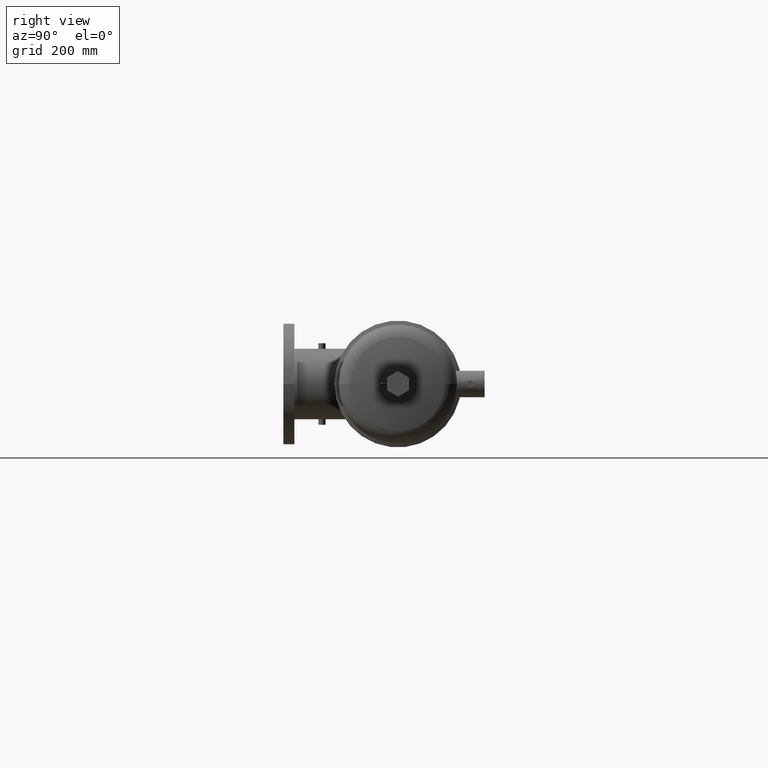
[diagram: clean part render]
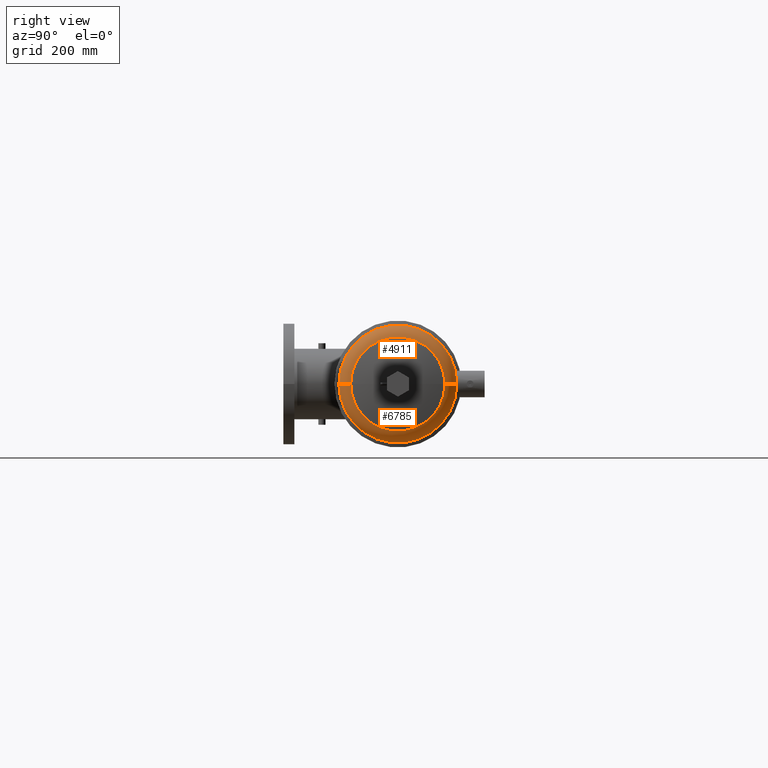
[diagram: same view with one multi-face feature highlighted, each face labeled with its STEP entity id]
A machine part, right view. The highlighted faces form ONE feature: a constant-radius fillet chain: 2 tangent blend faces with common blend radius 36.1885 mm. The faces share edges in the B-rep.
Their STEP definitions:
[1] entity #6785 (Torus):
#74 = EDGE_CURVE ( 'NONE', #2898, #160, #1484, .T. ) ;
#105 = AXIS2_PLACEMENT_3D ( 'NONE', #3814, #4412, #2226 ) ;
#132 = CARTESIAN_POINT ( 'NONE',  ( 46.73602763652997500, 3.146306107555197100E-007, 0.0000000000000000000 ) ) ;
#160 = VERTEX_POINT ( 'NONE', #5049 ) ;
#787 = DIRECTION ( 'NONE',  ( 1.000000000000000000, -8.273921759108280900E-016, 0.0000000000000000000 ) ) ;
#834 = EDGE_CURVE ( 'NONE', #2558, #7233, #5569, .T. ) ;
#877 = ORIENTED_EDGE ( 'NONE', *, *, #834, .F. ) ;
#962 = AXIS2_PLACEMENT_3D ( 'NONE', #2124, #5149, #1601 ) ;
#1484 = CIRCLE ( 'NONE', #962, 1.424746040561559700 ) ;
#1573 = AXIS2_PLACEMENT_3D ( 'NONE', #5962, #5881, #3640 ) ;
#1601 = DIRECTION ( 'NONE',  ( -1.000000000000000000, 0.0000000000000000000, 0.0000000000000000000 ) ) ;
#1927 = EDGE_CURVE ( 'NONE', #160, #7233, #5999, .T. ) ;
#2124 = CARTESIAN_POINT ( 'NONE',  ( 46.38726615220621600, -3.970789924957152600, 0.0000000000000000000 ) ) ;
#2226 = DIRECTION ( 'NONE',  ( 0.0000000000000000000, -1.000000000000000000, 0.0000000000000000000 ) ) ;
#2371 = DIRECTION ( 'NONE',  ( -8.273921759108279900E-016, -1.000000000000000000, 0.0000000000000000000 ) ) ;
#2379 = ORIENTED_EDGE ( 'NONE', *, *, #1927, .T. ) ;
#2558 = VERTEX_POINT ( 'NONE', #5139 ) ;
#2822 = ORIENTED_EDGE ( 'NONE', *, *, #3596, .T. ) ;
#2898 = VERTEX_POINT ( 'NONE', #6905 ) ;
#3377 = EDGE_LOOP ( 'NONE', ( #877, #2822, #4937, #2379 ) ) ;
#3455 = FACE_OUTER_BOUND ( 'NONE', #3377, .T. ) ;
#3596 = EDGE_CURVE ( 'NONE', #2558, #2898, #5474, .T. ) ;
#3640 = DIRECTION ( 'NONE',  ( 0.0000000000000000000, -1.000000000000000000, -1.224646799147353200E-016 ) ) ;
#3814 = CARTESIAN_POINT ( 'NONE',  ( 47.77907851798197900, 3.146306098139538100E-007, 0.0000000000000000000 ) ) ;
#3907 = TOROIDAL_SURFACE ( 'NONE', #6385, 3.970790239587763400, 1.424746040561563500 ) ;
#4151 = DIRECTION ( 'NONE',  ( -1.633333784244206700E-015, -1.000000000000000000, 0.0000000000000000000 ) ) ;
#4412 = DIRECTION ( 'NONE',  ( -1.000000000000000000, 8.273921759108280900E-016, -0.0000000000000000000 ) ) ;
#4630 = CARTESIAN_POINT ( 'NONE',  ( 46.38726615220621600, 3.146306110440822400E-007, 0.0000000000000000000 ) ) ;
#4937 = ORIENTED_EDGE ( 'NONE', *, *, #74, .T. ) ;
#5049 = CARTESIAN_POINT ( 'NONE',  ( 46.73602763652996100, -5.352190195388622000, 0.0000000000000000000 ) ) ;
#5139 = CARTESIAN_POINT ( 'NONE',  ( 47.77907851798197900, 4.275355191971229400, 5.235799665754214200E-016 ) ) ;
#5149 = DIRECTION ( 'NONE',  ( 0.0000000000000000000, -0.0000000000000000000, -1.000000000000000000 ) ) ;
#5474 = CIRCLE ( 'NONE', #105, 4.275354877340628700 ) ;
#5529 = AXIS2_PLACEMENT_3D ( 'NONE', #132, #787, #4151 ) ;
#5569 = CIRCLE ( 'NONE', #1573, 1.424746040561563500 ) ;
#5881 = DIRECTION ( 'NONE',  ( -1.013263179868759400E-031, -1.224646799147353200E-016, 1.000000000000000000 ) ) ;
#5962 = CARTESIAN_POINT ( 'NONE',  ( 46.38726615220621600, 3.970790554218374300, 4.862815556996706200E-016 ) ) ;
#5999 = CIRCLE ( 'NONE', #5529, 5.352190510019231500 ) ;
#6385 = AXIS2_PLACEMENT_3D ( 'NONE', #4630, #6992, #2371 ) ;
#6785 = ADVANCED_FACE ( 'NONE', ( #3455 ), #3907, .T. ) ;
#6905 = CARTESIAN_POINT ( 'NONE',  ( 47.77907851798197900, -4.275354562710009400, 0.0000000000000000000 ) ) ;
#6992 = DIRECTION ( 'NONE',  ( -1.000000000000000000, 8.273921759108280900E-016, -0.0000000000000000000 ) ) ;
#7233 = VERTEX_POINT ( 'NONE', #7407 ) ;
#7407 = CARTESIAN_POINT ( 'NONE',  ( 46.73602763652998200, 5.352190824649842900, 6.554542976521893600E-016 ) ) ;
[2] entity #4911 (Torus):
#74 = EDGE_CURVE ( 'NONE', #2898, #160, #1484, .T. ) ;
#160 = VERTEX_POINT ( 'NONE', #5049 ) ;
#489 = ORIENTED_EDGE ( 'NONE', *, *, #5629, .T. ) ;
#505 = CIRCLE ( 'NONE', #1367, 5.352190510019231500 ) ;
#776 = EDGE_LOOP ( 'NONE', ( #4847, #3503, #489, #2214 ) ) ;
#834 = EDGE_CURVE ( 'NONE', #2558, #7233, #5569, .T. ) ;
#962 = AXIS2_PLACEMENT_3D ( 'NONE', #2124, #5149, #1601 ) ;
#1198 = CARTESIAN_POINT ( 'NONE',  ( 47.77907851798197900, 3.146306098139538100E-007, 0.0000000000000000000 ) ) ;
#1367 = AXIS2_PLACEMENT_3D ( 'NONE', #3348, #1620, #5699 ) ;
#1484 = CIRCLE ( 'NONE', #962, 1.424746040561559700 ) ;
#1501 = CIRCLE ( 'NONE', #2421, 4.275354877340628700 ) ;
#1573 = AXIS2_PLACEMENT_3D ( 'NONE', #5962, #5881, #3640 ) ;
#1601 = DIRECTION ( 'NONE',  ( -1.000000000000000000, 0.0000000000000000000, 0.0000000000000000000 ) ) ;
#1620 = DIRECTION ( 'NONE',  ( 1.000000000000000000, -8.273921759108280900E-016, 0.0000000000000000000 ) ) ;
#1891 = DIRECTION ( 'NONE',  ( -1.000000000000000000, 8.273921759108280900E-016, -0.0000000000000000000 ) ) ;
#2124 = CARTESIAN_POINT ( 'NONE',  ( 46.38726615220621600, -3.970789924957152600, 0.0000000000000000000 ) ) ;
#2214 = ORIENTED_EDGE ( 'NONE', *, *, #74, .F. ) ;
#2421 = AXIS2_PLACEMENT_3D ( 'NONE', #1198, #2890, #3443 ) ;
#2558 = VERTEX_POINT ( 'NONE', #5139 ) ;
#2568 = TOROIDAL_SURFACE ( 'NONE', #6962, 3.970790239587763400, 1.424746040561563500 ) ;
#2890 = DIRECTION ( 'NONE',  ( -1.000000000000000000, 8.273921759108280900E-016, -0.0000000000000000000 ) ) ;
#2898 = VERTEX_POINT ( 'NONE', #6905 ) ;
#3348 = CARTESIAN_POINT ( 'NONE',  ( 46.73602763652997500, 3.146306107555197100E-007, 0.0000000000000000000 ) ) ;
#3443 = DIRECTION ( 'NONE',  ( 0.0000000000000000000, -1.000000000000000000, 0.0000000000000000000 ) ) ;
#3503 = ORIENTED_EDGE ( 'NONE', *, *, #834, .T. ) ;
#3640 = DIRECTION ( 'NONE',  ( 0.0000000000000000000, -1.000000000000000000, -1.224646799147353200E-016 ) ) ;
#3850 = FACE_OUTER_BOUND ( 'NONE', #776, .T. ) ;
#4724 = EDGE_CURVE ( 'NONE', #2898, #2558, #1501, .T. ) ;
#4847 = ORIENTED_EDGE ( 'NONE', *, *, #4724, .T. ) ;
#4911 = ADVANCED_FACE ( 'NONE', ( #3850 ), #2568, .T. ) ;
#5049 = CARTESIAN_POINT ( 'NONE',  ( 46.73602763652996100, -5.352190195388622000, 0.0000000000000000000 ) ) ;
#5139 = CARTESIAN_POINT ( 'NONE',  ( 47.77907851798197900, 4.275355191971229400, 5.235799665754214200E-016 ) ) ;
#5149 = DIRECTION ( 'NONE',  ( 0.0000000000000000000, -0.0000000000000000000, -1.000000000000000000 ) ) ;
#5344 = CARTESIAN_POINT ( 'NONE',  ( 46.38726615220621600, 3.146306110440822400E-007, 0.0000000000000000000 ) ) ;
#5366 = DIRECTION ( 'NONE',  ( -8.273921759108279900E-016, -1.000000000000000000, 0.0000000000000000000 ) ) ;
#5569 = CIRCLE ( 'NONE', #1573, 1.424746040561563500 ) ;
#5629 = EDGE_CURVE ( 'NONE', #7233, #160, #505, .T. ) ;
#5699 = DIRECTION ( 'NONE',  ( -1.633333784244206700E-015, -1.000000000000000000, 0.0000000000000000000 ) ) ;
#5881 = DIRECTION ( 'NONE',  ( -1.013263179868759400E-031, -1.224646799147353200E-016, 1.000000000000000000 ) ) ;
#5962 = CARTESIAN_POINT ( 'NONE',  ( 46.38726615220621600, 3.970790554218374300, 4.862815556996706200E-016 ) ) ;
#6905 = CARTESIAN_POINT ( 'NONE',  ( 47.77907851798197900, -4.275354562710009400, 0.0000000000000000000 ) ) ;
#6962 = AXIS2_PLACEMENT_3D ( 'NONE', #5344, #1891, #5366 ) ;
#7233 = VERTEX_POINT ( 'NONE', #7407 ) ;
#7407 = CARTESIAN_POINT ( 'NONE',  ( 46.73602763652998200, 5.352190824649842900, 6.554542976521893600E-016 ) ) ;